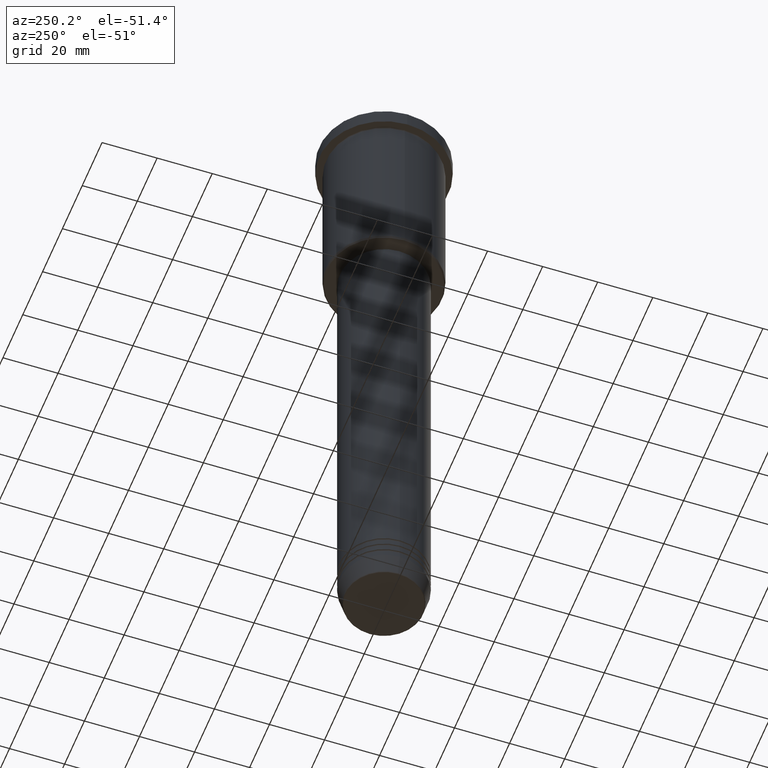
[diagram: clean part render]
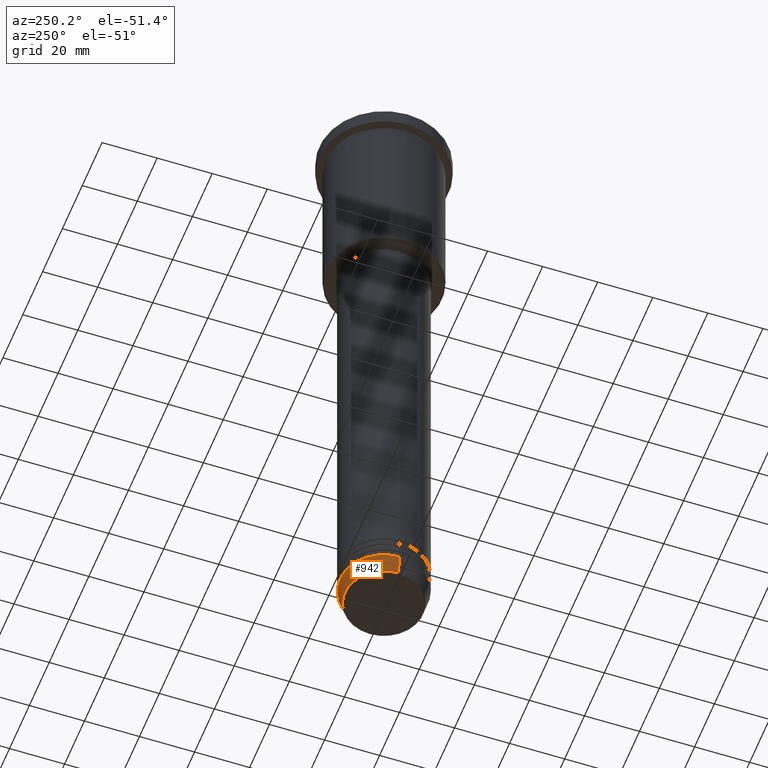
[diagram: same view with one face highlighted and labeled with its STEP entity id]
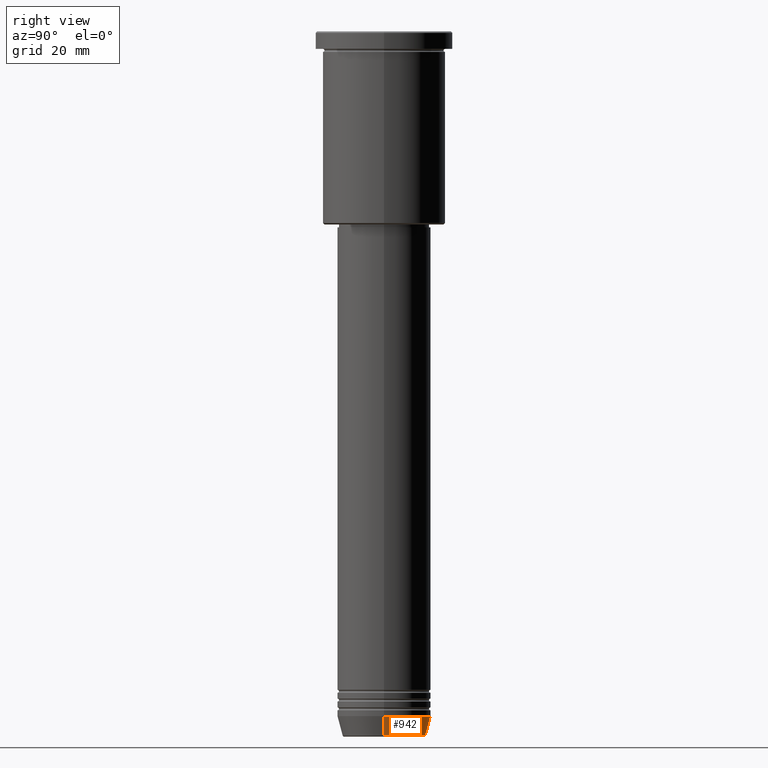
[diagram: same view with one face highlighted and labeled with its STEP entity id]
A machine part, auxiliary view. The second image highlights one B-rep face of the part: STEP entity #942.
A second angle (right view) of the same face is appended — the face is thin or edge-on in the first view.
In plain terms, the highlighted conical surface has half-angle 15 deg.
Its self-contained STEP definition (entity closure, byte-faithful):
#15 = AXIS2_PLACEMENT_3D ( 'NONE', #39, #945, #215 ) ;
#39 = CARTESIAN_POINT ( 'NONE',  ( 0.000000000000000000, 0.000000000000000000, -234.0000000000000000 ) ) ;
#48 = ORIENTED_EDGE ( 'NONE', *, *, #764, .T. ) ;
#50 = DIRECTION ( 'NONE',  ( -0.2588190451025213501, 3.169619151431772337E-17, 0.9659258262890680902 ) ) ;
#89 = LINE ( 'NONE', #633, #760 ) ;
#103 = EDGE_CURVE ( 'NONE', #317, #105, #1037, .T. ) ;
#105 = VERTEX_POINT ( 'NONE', #249 ) ;
#174 = VERTEX_POINT ( 'NONE', #770 ) ;
#215 = DIRECTION ( 'NONE',  ( 1.000000000000000000, 0.000000000000000000, 0.000000000000000000 ) ) ;
#231 = LINE ( 'NONE', #959, #1132 ) ;
#249 = CARTESIAN_POINT ( 'NONE',  ( -14.22365507213719660, 1.850665122131324126E-15, -240.6294095225512706 ) ) ;
#259 = AXIS2_PLACEMENT_3D ( 'NONE', #721, #1095, #272 ) ;
#270 = EDGE_CURVE ( 'NONE', #317, #174, #89, .T. ) ;
#272 = DIRECTION ( 'NONE',  ( 1.000000000000000000, 0.000000000000000000, 0.000000000000000000 ) ) ;
#317 = VERTEX_POINT ( 'NONE', #696 ) ;
#395 = FACE_OUTER_BOUND ( 'NONE', #586, .T. ) ;
#523 = ORIENTED_EDGE ( 'NONE', *, *, #103, .T. ) ;
#586 = EDGE_LOOP ( 'NONE', ( #523, #48, #734, #634 ) ) ;
#588 = AXIS2_PLACEMENT_3D ( 'NONE', #607, #971, #860 ) ;
#607 = CARTESIAN_POINT ( 'NONE',  ( 0.000000000000000000, 0.000000000000000000, -240.6294095225512706 ) ) ;
#633 = CARTESIAN_POINT ( 'NONE',  ( 16.00000000000000000, 0.000000000000000000, -234.0000000000000000 ) ) ;
#634 = ORIENTED_EDGE ( 'NONE', *, *, #270, .F. ) ;
#680 = EDGE_CURVE ( 'NONE', #174, #1070, #937, .T. ) ;
#696 = CARTESIAN_POINT ( 'NONE',  ( 14.22365507213719660, 0.000000000000000000, -240.6294095225512706 ) ) ;
#721 = CARTESIAN_POINT ( 'NONE',  ( 0.000000000000000000, 0.000000000000000000, -234.0000000000000000 ) ) ;
#734 = ORIENTED_EDGE ( 'NONE', *, *, #680, .F. ) ;
#760 = VECTOR ( 'NONE', #994, 1000.000000000000000 ) ;
#764 = EDGE_CURVE ( 'NONE', #105, #1070, #231, .T. ) ;
#770 = CARTESIAN_POINT ( 'NONE',  ( 16.00000000000000000, 0.000000000000000000, -234.0000000000000000 ) ) ;
#850 = CARTESIAN_POINT ( 'NONE',  ( -16.00000000000000000, 1.959434878635765131E-15, -234.0000000000000000 ) ) ;
#860 = DIRECTION ( 'NONE',  ( 1.000000000000000000, 0.000000000000000000, 0.000000000000000000 ) ) ;
#937 = CIRCLE ( 'NONE', #259, 16.00000000000000000 ) ;
#942 = ADVANCED_FACE ( 'NONE', ( #395 ), #955, .T. ) ;
#945 = DIRECTION ( 'NONE',  ( -0.000000000000000000, -0.000000000000000000, 1.000000000000000000 ) ) ;
#955 = CONICAL_SURFACE ( 'NONE', #15, 16.00000000000000000, 0.2617993877991500740 ) ;
#959 = CARTESIAN_POINT ( 'NONE',  ( -16.00000000000000000, 1.959434878635765131E-15, -234.0000000000000000 ) ) ;
#971 = DIRECTION ( 'NONE',  ( -0.000000000000000000, -0.000000000000000000, 1.000000000000000000 ) ) ;
#994 = DIRECTION ( 'NONE',  ( 0.2588190451025213501, 0.000000000000000000, 0.9659258262890680902 ) ) ;
#1037 = CIRCLE ( 'NONE', #588, 14.22365507213719660 ) ;
#1070 = VERTEX_POINT ( 'NONE', #850 ) ;
#1095 = DIRECTION ( 'NONE',  ( -0.000000000000000000, -0.000000000000000000, 1.000000000000000000 ) ) ;
#1132 = VECTOR ( 'NONE', #50, 1000.000000000000000 ) ;